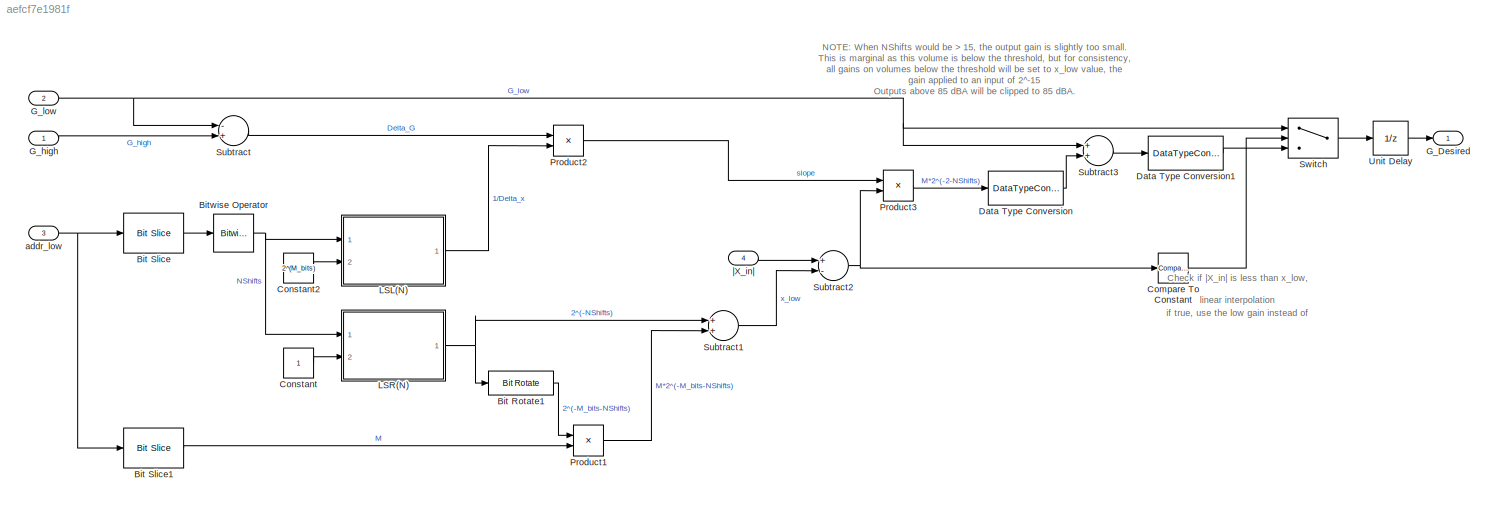
MODEL slx_aefcf7e1981f
KIND model
CONFIG AbsTol = auto
CONFIG EnableMultiTasking = off
CONFIG FixedStep = auto
CONFIG InitFcn = clear;\nDIAGNOSTIC = 0;  %% flag to give more information as simulation proceeds such as comments & plots\nCALIB_DIAGNOSTIC =  0; %% flag to give more information about calibration of filterbank due to overlap between filters: Mar 2016\nPRESCRIPT = 1;  %% flag to plot requested versus achieved insertion gains (esp for 125-250 Hz region).\nipfiledigrms = -36; %% input file RMS in dB for 65 dB SPL equiv...<+3607ch>
CONFIG MaxStep = auto
CONFIG MinStep = auto
CONFIG RelTol = 1e-3
CONFIG SampleTimeConstraint = Unconstrained
CONFIG Solver = FixedStepDiscrete
CONFIG SolverName = FixedStepDiscrete
CONFIG StartTime = 0.0
CONFIG StopFcn = proc_sig = double(out.proc_sig.data(:));\n%alignedSigs = double(out.alignedSigs.data(:));\n[opwav, stop_ok] = savewavfile(opfiledigrms, ipfiledigrms, proc_sig, Fs, nbits, NStreams);\n\nload('SweepSimOutput.mat')\nX_out_Sweep_Sim(Volume,:) = proc_sig;\nsave('SweepSimOutput.mat', 'X_out_Sweep_Sim');
CONFIG StopTime = t_end
BLOCK [Reference] Bit Rotate1  REF=hdlsllib/Logic and Bit
Operations/Bit Rotate
  Ports = [1, 1]
  SourceBlock = hdlsllib/Logic and Bit\nOperations/Bit Rotate
  SourceProductBaseCode = SL
  SourceProductName = Simulink
  SourceType = Bit Rotate
BLOCK [Reference] Bit Slice  REF=hdlsllib/Logic and Bit
Operations/Bit Slice
  Ports = [1, 1]
  SourceBlock = hdlsllib/Logic and Bit\nOperations/Bit Slice
  SourceProductBaseCode = SL
  SourceProductName = Simulink
  SourceType = Bit Slice
BLOCK [Reference] Bit Slice1  REF=hdlsllib/Logic and Bit
Operations/Bit Slice
  Ports = [1, 1]
  SourceBlock = hdlsllib/Logic and Bit\nOperations/Bit Slice
  SourceProductBaseCode = SL
  SourceProductName = Simulink
  SourceType = Bit Slice
BLOCK [Reference] Bitwise Operator  REF=simulink/Logic and Bit
Operations/Bitwise
Operator
  Ports = [1, 1]
  SourceBlock = simulink/Logic and Bit\nOperations/Bitwise\nOperator
  SourceProductBaseCode = SL
  SourceProductName = Simulink
  SourceType = Bitwise Operator
BLOCK [Reference] Compare To Constant  REF=simulink/Logic and Bit
Operations/Compare
To Constant
  Ports = [1, 1]
  SourceBlock = simulink/Logic and Bit\nOperations/Compare\nTo Constant
  SourceProductBaseCode = SL
  SourceProductName = Simulink
  SourceType = Compare To Constant
BLOCK [Constant] Constant
  OutDataTypeStr = fixdt(0,W_bits,W_bits-2)
  SampleTime = -1
BLOCK [Constant] Constant2
  OutDataTypeStr = fixdt(0,W_bits,0)
  SampleTime = -1
  Value = 2^(M_bits)
BLOCK [DataTypeConversion] Data Type Conversion
  OutDataTypeStr = fixdt(1,W_bits,F_bits)
  RndMeth = Floor
  SaturateOnIntegerOverflow = off
BLOCK [DataTypeConversion] Data Type Conversion1
  OutDataTypeStr = fixdt(1,W_bits, F_bits)
  RndMeth = Floor
  SaturateOnIntegerOverflow = off
BLOCK [Outport] G_Desired
  IconDisplay = Port number
  OutDataTypeStr = fixdt(1,32,28)
  PortDimensions = 1
  SampleTime = [2.0833333333333333e-05,0]
  SamplingMode = Sample based
  SignalType = real
BLOCK [Inport] G_high
  IconDisplay = Port number
  OutDataTypeStr = fixdt(1,32,28)
  PortDimensions = 1
  SampleTime = [2.0833333333333333e-05,0]
  SamplingMode = Sample based
  SignalType = real
BLOCK [Inport] G_low
  IconDisplay = Port number
  OutDataTypeStr = fixdt(1,32,28)
  Port = 2
  PortDimensions = 1
  SampleTime = [2.0833333333333333e-05,0]
  SamplingMode = Sample based
  SignalType = real
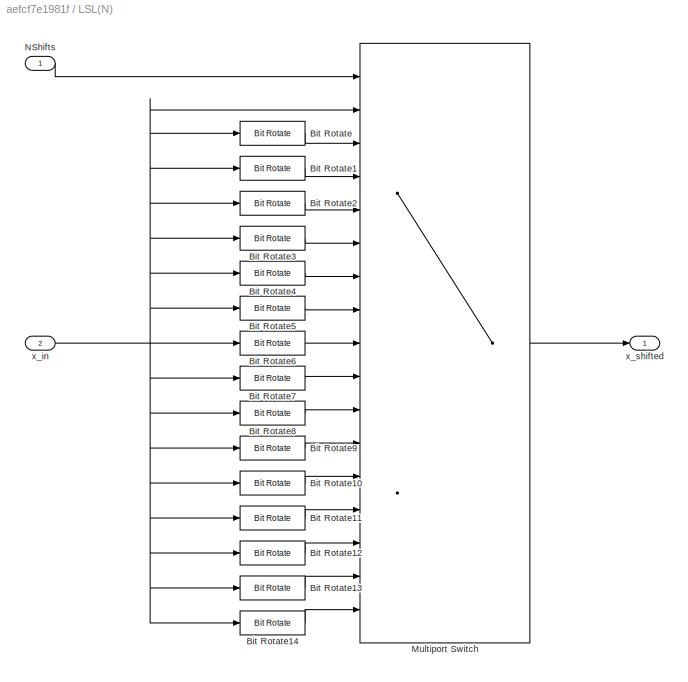
BLOCK [SubSystem] LSL(N)
  Ports = [2, 1]
  RequestExecContextInheritance = off
BLOCK [Reference] LSL(N)/Bit Rotate  REF=hdlsllib/Logic and Bit
Operations/Bit Rotate
  Ports = [1, 1]
  SourceBlock = hdlsllib/Logic and Bit\nOperations/Bit Rotate
  SourceProductBaseCode = SL
  SourceProductName = Simulink
  SourceType = Bit Rotate
BLOCK [Reference] LSL(N)/Bit Rotate1  REF=hdlsllib/Logic and Bit
Operations/Bit Rotate
  Ports = [1, 1]
  SourceBlock = hdlsllib/Logic and Bit\nOperations/Bit Rotate
  SourceProductBaseCode = SL
  SourceProductName = Simulink
  SourceType = Bit Rotate
BLOCK [Reference] LSL(N)/Bit Rotate10  REF=hdlsllib/Logic and Bit
Operations/Bit Rotate
  Ports = [1, 1]
  SourceBlock = hdlsllib/Logic and Bit\nOperations/Bit Rotate
  SourceProductBaseCode = SL
  SourceProductName = Simulink
  SourceType = Bit Rotate
BLOCK [Reference] LSL(N)/Bit Rotate11  REF=hdlsllib/Logic and Bit
Operations/Bit Rotate
  Ports = [1, 1]
  SourceBlock = hdlsllib/Logic and Bit\nOperations/Bit Rotate
  SourceProductBaseCode = SL
  SourceProductName = Simulink
  SourceType = Bit Rotate
BLOCK [Reference] LSL(N)/Bit Rotate12  REF=hdlsllib/Logic and Bit
Operations/Bit Rotate
  Ports = [1, 1]
  SourceBlock = hdlsllib/Logic and Bit\nOperations/Bit Rotate
  SourceProductBaseCode = SL
  SourceProductName = Simulink
  SourceType = Bit Rotate
BLOCK [Reference] LSL(N)/Bit Rotate13  REF=hdlsllib/Logic and Bit
Operations/Bit Rotate
  Ports = [1, 1]
  SourceBlock = hdlsllib/Logic and Bit\nOperations/Bit Rotate
  SourceProductBaseCode = SL
  SourceProductName = Simulink
  SourceType = Bit Rotate
BLOCK [Reference] LSL(N)/Bit Rotate14  REF=hdlsllib/Logic and Bit
Operations/Bit Rotate
  Ports = [1, 1]
  SourceBlock = hdlsllib/Logic and Bit\nOperations/Bit Rotate
  SourceProductBaseCode = SL
  SourceProductName = Simulink
  SourceType = Bit Rotate
BLOCK [Reference] LSL(N)/Bit Rotate2  REF=hdlsllib/Logic and Bit
Operations/Bit Rotate
  Ports = [1, 1]
  SourceBlock = hdlsllib/Logic and Bit\nOperations/Bit Rotate
  SourceProductBaseCode = SL
  SourceProductName = Simulink
  SourceType = Bit Rotate
BLOCK [Reference] LSL(N)/Bit Rotate3  REF=hdlsllib/Logic and Bit
Operations/Bit Rotate
  Ports = [1, 1]
  SourceBlock = hdlsllib/Logic and Bit\nOperations/Bit Rotate
  SourceProductBaseCode = SL
  SourceProductName = Simulink
  SourceType = Bit Rotate
BLOCK [Reference] LSL(N)/Bit Rotate4  REF=hdlsllib/Logic and Bit
Operations/Bit Rotate
  Ports = [1, 1]
  SourceBlock = hdlsllib/Logic and Bit\nOperations/Bit Rotate
  SourceProductBaseCode = SL
  SourceProductName = Simulink
  SourceType = Bit Rotate
BLOCK [Reference] LSL(N)/Bit Rotate5  REF=hdlsllib/Logic and Bit
Operations/Bit Rotate
  Ports = [1, 1]
  SourceBlock = hdlsllib/Logic and Bit\nOperations/Bit Rotate
  SourceProductBaseCode = SL
  SourceProductName = Simulink
  SourceType = Bit Rotate
BLOCK [Reference] LSL(N)/Bit Rotate6  REF=hdlsllib/Logic and Bit
Operations/Bit Rotate
  Ports = [1, 1]
  SourceBlock = hdlsllib/Logic and Bit\nOperations/Bit Rotate
  SourceProductBaseCode = SL
  SourceProductName = Simulink
  SourceType = Bit Rotate
BLOCK [Reference] LSL(N)/Bit Rotate7  REF=hdlsllib/Logic and Bit
Operations/Bit Rotate
  Ports = [1, 1]
  SourceBlock = hdlsllib/Logic and Bit\nOperations/Bit Rotate
  SourceProductBaseCode = SL
  SourceProductName = Simulink
  SourceType = Bit Rotate
BLOCK [Reference] LSL(N)/Bit Rotate8  REF=hdlsllib/Logic and Bit
Operations/Bit Rotate
  Ports = [1, 1]
  SourceBlock = hdlsllib/Logic and Bit\nOperations/Bit Rotate
  SourceProductBaseCode = SL
  SourceProductName = Simulink
  SourceType = Bit Rotate
BLOCK [Reference] LSL(N)/Bit Rotate9  REF=hdlsllib/Logic and Bit
Operations/Bit Rotate
  Ports = [1, 1]
  SourceBlock = hdlsllib/Logic and Bit\nOperations/Bit Rotate
  SourceProductBaseCode = SL
  SourceProductName = Simulink
  SourceType = Bit Rotate
BLOCK [MultiPortSwitch] LSL(N)/Multiport Switch
  DataPortOrder = Zero-based contiguous
  DiagnosticForDefault = Warning
  InputSameDT = off
  Inputs = 16
  Ports = [17, 1]
  SaturateOnIntegerOverflow = off
  zeroidx = on
BLOCK [Inport] LSL(N)/NShifts
  IconDisplay = Port number
BLOCK [Inport] LSL(N)/x_in
  IconDisplay = Port number
  Port = 2
BLOCK [Outport] LSL(N)/x_shifted
  IconDisplay = Port number
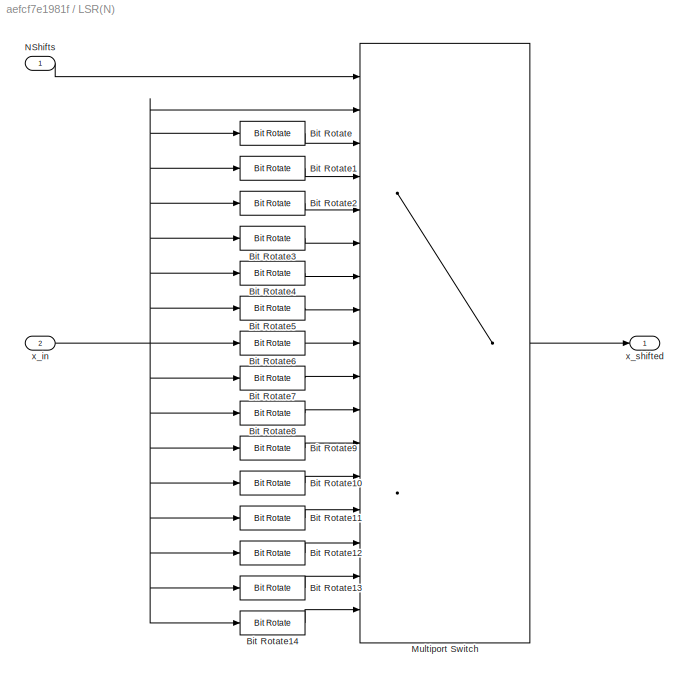
BLOCK [SubSystem] LSR(N)
  Ports = [2, 1]
  RequestExecContextInheritance = off
BLOCK [Reference] LSR(N)/Bit Rotate  REF=hdlsllib/Logic and Bit
Operations/Bit Rotate
  Ports = [1, 1]
  SourceBlock = hdlsllib/Logic and Bit\nOperations/Bit Rotate
  SourceProductBaseCode = SL
  SourceProductName = Simulink
  SourceType = Bit Rotate
BLOCK [Reference] LSR(N)/Bit Rotate1  REF=hdlsllib/Logic and Bit
Operations/Bit Rotate
  Ports = [1, 1]
  SourceBlock = hdlsllib/Logic and Bit\nOperations/Bit Rotate
  SourceProductBaseCode = SL
  SourceProductName = Simulink
  SourceType = Bit Rotate
BLOCK [Reference] LSR(N)/Bit Rotate10  REF=hdlsllib/Logic and Bit
Operations/Bit Rotate
  Ports = [1, 1]
  SourceBlock = hdlsllib/Logic and Bit\nOperations/Bit Rotate
  SourceProductBaseCode = SL
  SourceProductName = Simulink
  SourceType = Bit Rotate
BLOCK [Reference] LSR(N)/Bit Rotate11  REF=hdlsllib/Logic and Bit
Operations/Bit Rotate
  Ports = [1, 1]
  SourceBlock = hdlsllib/Logic and Bit\nOperations/Bit Rotate
  SourceProductBaseCode = SL
  SourceProductName = Simulink
  SourceType = Bit Rotate
BLOCK [Reference] LSR(N)/Bit Rotate12  REF=hdlsllib/Logic and Bit
Operations/Bit Rotate
  Ports = [1, 1]
  SourceBlock = hdlsllib/Logic and Bit\nOperations/Bit Rotate
  SourceProductBaseCode = SL
  SourceProductName = Simulink
  SourceType = Bit Rotate
BLOCK [Reference] LSR(N)/Bit Rotate13  REF=hdlsllib/Logic and Bit
Operations/Bit Rotate
  Ports = [1, 1]
  SourceBlock = hdlsllib/Logic and Bit\nOperations/Bit Rotate
  SourceProductBaseCode = SL
  SourceProductName = Simulink
  SourceType = Bit Rotate
BLOCK [Reference] LSR(N)/Bit Rotate14  REF=hdlsllib/Logic and Bit
Operations/Bit Rotate
  Ports = [1, 1]
  SourceBlock = hdlsllib/Logic and Bit\nOperations/Bit Rotate
  SourceProductBaseCode = SL
  SourceProductName = Simulink
  SourceType = Bit Rotate
BLOCK [Reference] LSR(N)/Bit Rotate2  REF=hdlsllib/Logic and Bit
Operations/Bit Rotate
  Ports = [1, 1]
  SourceBlock = hdlsllib/Logic and Bit\nOperations/Bit Rotate
  SourceProductBaseCode = SL
  SourceProductName = Simulink
  SourceType = Bit Rotate
BLOCK [Reference] LSR(N)/Bit Rotate3  REF=hdlsllib/Logic and Bit
Operations/Bit Rotate
  Ports = [1, 1]
  SourceBlock = hdlsllib/Logic and Bit\nOperations/Bit Rotate
  SourceProductBaseCode = SL
  SourceProductName = Simulink
  SourceType = Bit Rotate
BLOCK [Reference] LSR(N)/Bit Rotate4  REF=hdlsllib/Logic and Bit
Operations/Bit Rotate
  Ports = [1, 1]
  SourceBlock = hdlsllib/Logic and Bit\nOperations/Bit Rotate
  SourceProductBaseCode = SL
  SourceProductName = Simulink
  SourceType = Bit Rotate
BLOCK [Reference] LSR(N)/Bit Rotate5  REF=hdlsllib/Logic and Bit
Operations/Bit Rotate
  Ports = [1, 1]
  SourceBlock = hdlsllib/Logic and Bit\nOperations/Bit Rotate
  SourceProductBaseCode = SL
  SourceProductName = Simulink
  SourceType = Bit Rotate
BLOCK [Reference] LSR(N)/Bit Rotate6  REF=hdlsllib/Logic and Bit
Operations/Bit Rotate
  Ports = [1, 1]
  SourceBlock = hdlsllib/Logic and Bit\nOperations/Bit Rotate
  SourceProductBaseCode = SL
  SourceProductName = Simulink
  SourceType = Bit Rotate
BLOCK [Reference] LSR(N)/Bit Rotate7  REF=hdlsllib/Logic and Bit
Operations/Bit Rotate
  Ports = [1, 1]
  SourceBlock = hdlsllib/Logic and Bit\nOperations/Bit Rotate
  SourceProductBaseCode = SL
  SourceProductName = Simulink
  SourceType = Bit Rotate
BLOCK [Reference] LSR(N)/Bit Rotate8  REF=hdlsllib/Logic and Bit
Operations/Bit Rotate
  Ports = [1, 1]
  SourceBlock = hdlsllib/Logic and Bit\nOperations/Bit Rotate
  SourceProductBaseCode = SL
  SourceProductName = Simulink
  SourceType = Bit Rotate
BLOCK [Reference] LSR(N)/Bit Rotate9  REF=hdlsllib/Logic and Bit
Operations/Bit Rotate
  Ports = [1, 1]
  SourceBlock = hdlsllib/Logic and Bit\nOperations/Bit Rotate
  SourceProductBaseCode = SL
  SourceProductName = Simulink
  SourceType = Bit Rotate
BLOCK [MultiPortSwitch] LSR(N)/Multiport Switch
  DataPortOrder = Zero-based contiguous
  DiagnosticForDefault = Warning
  InputSameDT = off
  Inputs = 16
  Ports = [17, 1]
  SaturateOnIntegerOverflow = off
  zeroidx = on
BLOCK [Inport] LSR(N)/NShifts
  IconDisplay = Port number
BLOCK [Inport] LSR(N)/x_in
  IconDisplay = Port number
  Port = 2
BLOCK [Outport] LSR(N)/x_shifted
  IconDisplay = Port number
BLOCK [Product] Product1
  InputSameDT = off
  OutDataTypeStr = Inherit: Inherit via internal rule
  Ports = [2, 1]
  RndMeth = Floor
  SaturateOnIntegerOverflow = off
BLOCK [Product] Product2
  InputSameDT = off
  OutDataTypeStr = Inherit: Inherit via internal rule
  Ports = [2, 1]
  RndMeth = Floor
  SaturateOnIntegerOverflow = off
BLOCK [Product] Product3
  InputSameDT = off
  OutDataTypeStr = Inherit: Inherit via internal rule
  Ports = [2, 1]
  RndMeth = Floor
  SaturateOnIntegerOverflow = off
BLOCK [Sum] Subtract
  InputSameDT = off
  Inputs = -+
  OutDataTypeStr = Inherit: Inherit via internal rule
  Ports = [2, 1]
  SaturateOnIntegerOverflow = off
BLOCK [Sum] Subtract1
  InputSameDT = off
  OutDataTypeStr = fixdt(1,W_bits, F_bits)
  Ports = [2, 1]
  SaturateOnIntegerOverflow = off
BLOCK [Sum] Subtract2
  InputSameDT = off
  Inputs = +-
  Ports = [2, 1]
  SaturateOnIntegerOverflow = off
BLOCK [Sum] Subtract3
  InputSameDT = off
  OutDataTypeStr = Inherit: Inherit via internal rule
  Ports = [2, 1]
  SaturateOnIntegerOverflow = off
BLOCK [Switch] Switch
  Criteria = u2 > Threshold
  InputSameDT = off
  SaturateOnIntegerOverflow = off
BLOCK [UnitDelay] Unit Delay
  HasFrameUpgradeWarning = on
  InitialCondition = 1
  SampleTime = -1
BLOCK [Inport] addr_low
  IconDisplay = Port number
  OutDataTypeStr = fixdt(0,9,0)
  Port = 3
  PortDimensions = 1
  SampleTime = [2.0833333333333333e-05,0]
  SamplingMode = Sample based
  SignalType = real
BLOCK [Inport] |X_in|
  IconDisplay = Port number
  OutDataTypeStr = fixdt(1,32,28)
  Port = 4
  PortDimensions = 1
  SampleTime = [2.0833333333333333e-05,0]
  SamplingMode = Sample based
  SignalType = real
ANNOTATION (root): Check if |X_in| is less than x_low, if true, use the low gain instead of linear interpolation
ANNOTATION (root): NOTE: When NShifts would be > 15, the output gain is slightly too small. This is marginal as this volume is below the threshold, but for consistency, all gains on volumes below the threshold will be set to x_low value, the gain applied to an input of 2^-15 Outputs above 85 dBA will be clipped to 85 dBA.
LINE Bit Rotate1:1 -> Product1:1
LINE Bit Slice1:1 -> Product1:2
LINE Bit Slice:1 -> Bitwise Operator:1
NET Bitwise Operator:1 -> LSL(N):1, LSR(N):1
LINE Compare To Constant:1 -> Switch:2
LINE Constant2:1 -> LSL(N):2
LINE Constant:1 -> LSR(N):2
LINE Data Type Conversion1:1 -> Switch:3
LINE Data Type Conversion:1 -> Subtract3:2
LINE G_high:1 -> Subtract:2
NET G_low:1 -> Subtract3:1, Subtract:1, Switch:1
LINE LSL(N)/Bit Rotate10:1 -> LSL(N)/Multiport Switch:13
LINE LSL(N)/Bit Rotate11:1 -> LSL(N)/Multiport Switch:14
LINE LSL(N)/Bit Rotate12:1 -> LSL(N)/Multiport Switch:15
LINE LSL(N)/Bit Rotate13:1 -> LSL(N)/Multiport Switch:16
LINE LSL(N)/Bit Rotate14:1 -> LSL(N)/Multiport Switch:17
LINE LSL(N)/Bit Rotate1:1 -> LSL(N)/Multiport Switch:4
LINE LSL(N)/Bit Rotate2:1 -> LSL(N)/Multiport Switch:5
LINE LSL(N)/Bit Rotate3:1 -> LSL(N)/Multiport Switch:6
LINE LSL(N)/Bit Rotate4:1 -> LSL(N)/Multiport Switch:7
LINE LSL(N)/Bit Rotate5:1 -> LSL(N)/Multiport Switch:8
LINE LSL(N)/Bit Rotate6:1 -> LSL(N)/Multiport Switch:9
LINE LSL(N)/Bit Rotate7:1 -> LSL(N)/Multiport Switch:10
LINE LSL(N)/Bit Rotate8:1 -> LSL(N)/Multiport Switch:11
LINE LSL(N)/Bit Rotate9:1 -> LSL(N)/Multiport Switch:12
LINE LSL(N)/Bit Rotate:1 -> LSL(N)/Multiport Switch:3
LINE LSL(N)/Multiport Switch:1 -> LSL(N)/x_shifted:1
LINE LSL(N)/NShifts:1 -> LSL(N)/Multiport Switch:1
NET LSL(N)/x_in:1 -> LSL(N)/Bit Rotate10:1, LSL(N)/Bit Rotate11:1, LSL(N)/Bit Rotate12:1, LSL(N)/Bit Rotate13:1, LSL(N)/Bit Rotate14:1, LSL(N)/Bit Rotate1:1, LSL(N)/Bit Rotate2:1, LSL(N)/Bit Rotate3:1, LSL(N)/Bit Rotate4:1, LSL(N)/Bit Rotate5:1, LSL(N)/Bit Rotate6:1, LSL(N)/Bit Rotate7:1, LSL(N)/Bit Rotate8:1, LSL(N)/Bit Rotate9:1, LSL(N)/Bit Rotate:1, LSL(N)/Multiport Switch:2
LINE LSL(N):1 -> Product2:2
LINE LSR(N)/Bit Rotate10:1 -> LSR(N)/Multiport Switch:13
LINE LSR(N)/Bit Rotate11:1 -> LSR(N)/Multiport Switch:14
LINE LSR(N)/Bit Rotate12:1 -> LSR(N)/Multiport Switch:15
LINE LSR(N)/Bit Rotate13:1 -> LSR(N)/Multiport Switch:16
LINE LSR(N)/Bit Rotate14:1 -> LSR(N)/Multiport Switch:17
LINE LSR(N)/Bit Rotate1:1 -> LSR(N)/Multiport Switch:4
LINE LSR(N)/Bit Rotate2:1 -> LSR(N)/Multiport Switch:5
LINE LSR(N)/Bit Rotate3:1 -> LSR(N)/Multiport Switch:6
LINE LSR(N)/Bit Rotate4:1 -> LSR(N)/Multiport Switch:7
LINE LSR(N)/Bit Rotate5:1 -> LSR(N)/Multiport Switch:8
LINE LSR(N)/Bit Rotate6:1 -> LSR(N)/Multiport Switch:9
LINE LSR(N)/Bit Rotate7:1 -> LSR(N)/Multiport Switch:10
LINE LSR(N)/Bit Rotate8:1 -> LSR(N)/Multiport Switch:11
LINE LSR(N)/Bit Rotate9:1 -> LSR(N)/Multiport Switch:12
LINE LSR(N)/Bit Rotate:1 -> LSR(N)/Multiport Switch:3
LINE LSR(N)/Multiport Switch:1 -> LSR(N)/x_shifted:1
LINE LSR(N)/NShifts:1 -> LSR(N)/Multiport Switch:1
NET LSR(N)/x_in:1 -> LSR(N)/Bit Rotate10:1, LSR(N)/Bit Rotate11:1, LSR(N)/Bit Rotate12:1, LSR(N)/Bit Rotate13:1, LSR(N)/Bit Rotate14:1, LSR(N)/Bit Rotate1:1, LSR(N)/Bit Rotate2:1, LSR(N)/Bit Rotate3:1, LSR(N)/Bit Rotate4:1, LSR(N)/Bit Rotate5:1, LSR(N)/Bit Rotate6:1, LSR(N)/Bit Rotate7:1, LSR(N)/Bit Rotate8:1, LSR(N)/Bit Rotate9:1, LSR(N)/Bit Rotate:1, LSR(N)/Multiport Switch:2
NET LSR(N):1 -> Bit Rotate1:1, Subtract1:1
LINE Product1:1 -> Subtract1:2
LINE Product2:1 -> Product3:1
LINE Product3:1 -> Data Type Conversion:1
LINE Subtract1:1 -> Subtract2:2
NET Subtract2:1 -> Compare To Constant:1, Product3:2
LINE Subtract3:1 -> Data Type Conversion1:1
LINE Subtract:1 -> Product2:1
LINE Switch:1 -> Unit Delay:1
LINE Unit Delay:1 -> G_Desired:1
NET addr_low:1 -> Bit Slice1:1, Bit Slice:1
LINE |X_in|:1 -> Subtract2:1
note: NET lines group one-source signal fan-out (src -> all destinations, sorted); 1:1 wires keep LINE
